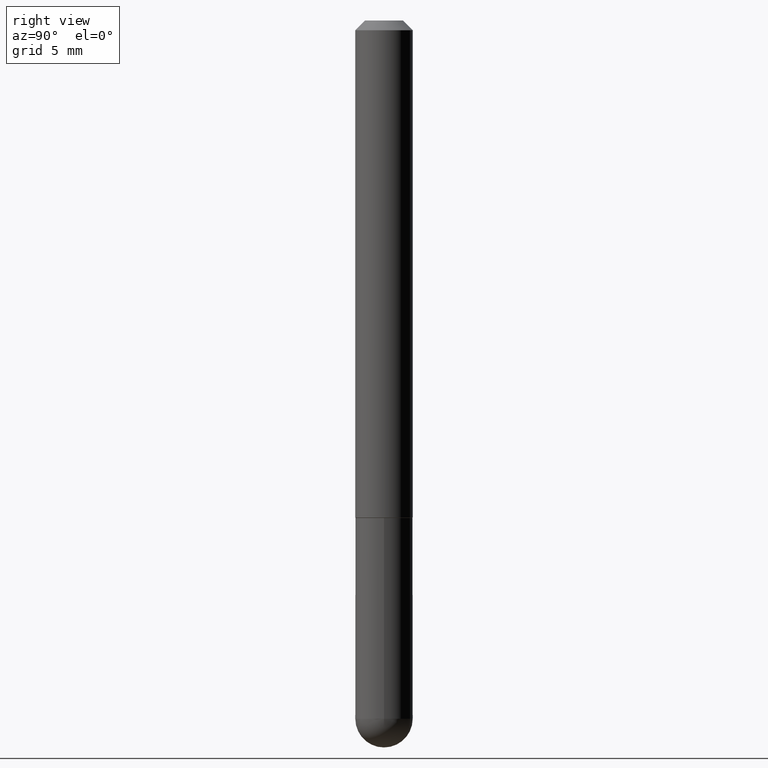
[diagram: clean part render]
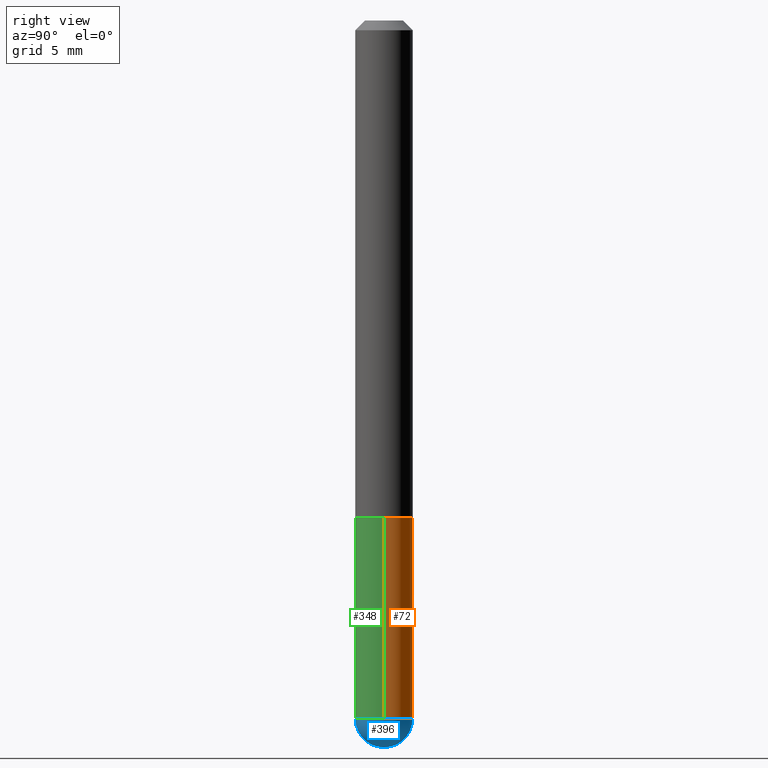
[diagram: same view with three faces highlighted in distinct colors, each labeled with its STEP entity id]
A machine part, right view with three faces highlighted in distinct colors.
Their STEP definitions:

[orange] entity #72 — the highlighted cylindrical surface (edge-blend (fillet) strip) has radius 1.4999 mm, axis along (-0, 0, 1).
#6 = CARTESIAN_POINT ( 'NONE',  ( 3.514260947928350449E-29, -5.017433257984542594E-15, -1.437049999999999939 ) ) ;
#8 = FACE_OUTER_BOUND ( 'NONE', #271, .T. ) ;
#18 = AXIS2_PLACEMENT_3D ( 'NONE', #6, #285, #359 ) ;
#34 = DIRECTION ( 'NONE',  ( 1.000000000000000000, -6.982962677686266711E-15, 4.876176775795935793E-29 ) ) ;
#52 = CIRCLE ( 'NONE', #336, 0.05905000000000001914 ) ;
#54 = CARTESIAN_POINT ( 'NONE',  ( -0.05905000000000001914, -3.876255866812795611E-15, -1.023699999999999832 ) ) ;
#57 = VERTEX_POINT ( 'NONE', #103 ) ;
#59 = VERTEX_POINT ( 'NONE', #321 ) ;
#72 = ADVANCED_FACE ( 'NONE', ( #8 ), #173, .T. ) ;
#75 = CARTESIAN_POINT ( 'NONE',  ( 0.000000000000000000, 0.000000000000000000, 0.000000000000000000 ) ) ;
#86 = EDGE_CURVE ( 'NONE', #59, #401, #368, .T. ) ;
#102 = CARTESIAN_POINT ( 'NONE',  ( 0.05905000000000001914, -4.123439461173741806E-16, 2.879382386107500921E-30 ) ) ;
#103 = CARTESIAN_POINT ( 'NONE',  ( 0.05905000000000001914, -3.986573392691101744E-15, -1.023699999999999832 ) ) ;
#105 = DIRECTION ( 'NONE',  ( -2.445468806185136877E-29, 3.491481338843145188E-15, 1.000000000000000000 ) ) ;
#126 = CARTESIAN_POINT ( 'NONE',  ( -0.05905000000000001914, 4.195754854663392958E-16, -2.904631170795522943E-30 ) ) ;
#138 = DIRECTION ( 'NONE',  ( -2.445468806185136597E-29, 3.491481338843145583E-15, 1.000000000000000000 ) ) ;
#149 = ORIENTED_EDGE ( 'NONE', *, *, #288, .F. ) ;
#173 = CYLINDRICAL_SURFACE ( 'NONE', #412, 0.05905000000000001914 ) ;
#176 = DIRECTION ( 'NONE',  ( 1.000000000000000000, -6.982962677686270655E-15, 0.000000000000000000 ) ) ;
#200 = DIRECTION ( 'NONE',  ( -2.445468806185136597E-29, 3.491481338843145583E-15, 1.000000000000000000 ) ) ;
#225 = CARTESIAN_POINT ( 'NONE',  ( 2.503426416891723784E-29, -3.574229446573727613E-15, -1.023699999999999832 ) ) ;
#235 = ORIENTED_EDGE ( 'NONE', *, *, #283, .T. ) ;
#238 = VERTEX_POINT ( 'NONE', #287 ) ;
#252 = DIRECTION ( 'NONE',  ( -2.445468806185136877E-29, 3.491481338843145188E-15, 1.000000000000000000 ) ) ;
#253 = VECTOR ( 'NONE', #252, 39.37007874015748143 ) ;
#255 = DIRECTION ( 'NONE',  ( 1.000000000000000000, -6.982962677686262766E-15, 0.000000000000000000 ) ) ;
#271 = EDGE_LOOP ( 'NONE', ( #301, #329, #277, #149, #235 ) ) ;
#272 = EDGE_CURVE ( 'NONE', #57, #401, #52, .T. ) ;
#277 = ORIENTED_EDGE ( 'NONE', *, *, #272, .F. ) ;
#280 = CIRCLE ( 'NONE', #18, 0.05905000000000001914 ) ;
#283 = EDGE_CURVE ( 'NONE', #335, #238, #280, .T. ) ;
#285 = DIRECTION ( 'NONE',  ( -2.445468806185136597E-29, 3.491481338843145583E-15, 1.000000000000000000 ) ) ;
#287 = CARTESIAN_POINT ( 'NONE',  ( 4.123439461174084467E-16, 0.05904999999999487742, -1.437050000000000161 ) ) ;
#288 = EDGE_CURVE ( 'NONE', #335, #57, #383, .T. ) ;
#301 = ORIENTED_EDGE ( 'NONE', *, *, #366, .T. ) ;
#313 = CIRCLE ( 'NONE', #323, 0.05905000000000001914 ) ;
#321 = CARTESIAN_POINT ( 'NONE',  ( -0.05905000000000001914, -3.876255866812795611E-15, -1.437049999999999939 ) ) ;
#323 = AXIS2_PLACEMENT_3D ( 'NONE', #369, #334, #176 ) ;
#329 = ORIENTED_EDGE ( 'NONE', *, *, #86, .T. ) ;
#334 = DIRECTION ( 'NONE',  ( -2.445468806185136597E-29, 3.491481338843145583E-15, 1.000000000000000000 ) ) ;
#335 = VERTEX_POINT ( 'NONE', #382 ) ;
#336 = AXIS2_PLACEMENT_3D ( 'NONE', #225, #200, #255 ) ;
#359 = DIRECTION ( 'NONE',  ( 1.000000000000000000, -6.982962677686270655E-15, 0.000000000000000000 ) ) ;
#366 = EDGE_CURVE ( 'NONE', #238, #59, #313, .T. ) ;
#368 = LINE ( 'NONE', #126, #253 ) ;
#369 = CARTESIAN_POINT ( 'NONE',  ( 3.514260947928350449E-29, -5.017433257984542594E-15, -1.437049999999999939 ) ) ;
#382 = CARTESIAN_POINT ( 'NONE',  ( 0.05905000000000001914, -4.708175298396508446E-15, -1.437049999999999939 ) ) ;
#383 = LINE ( 'NONE', #102, #384 ) ;
#384 = VECTOR ( 'NONE', #105, 39.37007874015748143 ) ;
#401 = VERTEX_POINT ( 'NONE', #54 ) ;
#412 = AXIS2_PLACEMENT_3D ( 'NONE', #75, #138, #34 ) ;

[blue] entity #396 — the highlighted spherical surface has radius 1.4999 mm.
#2 = CIRCLE ( 'NONE', #101, 0.05905000000000025506 ) ;
#6 = CARTESIAN_POINT ( 'NONE',  ( 3.514260947928350449E-29, -5.017433257984542594E-15, -1.437049999999999939 ) ) ;
#15 = DIRECTION ( 'NONE',  ( 6.982962677686266711E-15, 1.000000000000000000, 0.000000000000000000 ) ) ;
#18 = AXIS2_PLACEMENT_3D ( 'NONE', #6, #285, #359 ) ;
#24 = ORIENTED_EDGE ( 'NONE', *, *, #283, .F. ) ;
#46 = DIRECTION ( 'NONE',  ( -1.000000000000000000, 6.982962677686265922E-15, -4.883557194083112340E-29 ) ) ;
#69 = DIRECTION ( 'NONE',  ( -1.000000000000000000, 7.105427357601001070E-15, -4.926315508542082329E-29 ) ) ;
#80 = DIRECTION ( 'NONE',  ( 1.000000000000000000, -6.982962677686265922E-15, 4.883557194083112340E-29 ) ) ;
#87 = CARTESIAN_POINT ( 'NONE',  ( -4.195754854663065087E-16, -0.05905000000000539678, -1.437049999999999716 ) ) ;
#98 = DIRECTION ( 'NONE',  ( 1.000000000000000000, -6.982962677686270655E-15, 0.000000000000000000 ) ) ;
#101 = AXIS2_PLACEMENT_3D ( 'NONE', #151, #80, #15 ) ;
#104 = CARTESIAN_POINT ( 'NONE',  ( 3.183141170014464762E-29, -5.491615626124592102E-15, -1.437049999999999939 ) ) ;
#128 = CIRCLE ( 'NONE', #319, 0.05905000000000001914 ) ;
#131 = AXIS2_PLACEMENT_3D ( 'NONE', #240, #46, #262 ) ;
#135 = DIRECTION ( 'NONE',  ( -7.105427357601001070E-15, -1.000000000000000000, 0.000000000000000000 ) ) ;
#145 = EDGE_CURVE ( 'NONE', #378, #335, #128, .T. ) ;
#151 = CARTESIAN_POINT ( 'NONE',  ( 3.183141170014464762E-29, -5.491615626124592102E-15, -1.437049999999999939 ) ) ;
#180 = VERTEX_POINT ( 'NONE', #296 ) ;
#198 = CIRCLE ( 'NONE', #407, 0.05905000000000025506 ) ;
#209 = ORIENTED_EDGE ( 'NONE', *, *, #377, .T. ) ;
#210 = FACE_OUTER_BOUND ( 'NONE', #333, .T. ) ;
#222 = DIRECTION ( 'NONE',  ( -2.445468806185136597E-29, 3.491481338843145583E-15, 1.000000000000000000 ) ) ;
#232 = EDGE_CURVE ( 'NONE', #180, #378, #198, .T. ) ;
#238 = VERTEX_POINT ( 'NONE', #287 ) ;
#240 = CARTESIAN_POINT ( 'NONE',  ( 3.183141170014464762E-29, -5.491615626124592102E-15, -1.437049999999999939 ) ) ;
#262 = DIRECTION ( 'NONE',  ( 6.982962677686265922E-15, 1.000000000000000000, -4.626330217890349615E-15 ) ) ;
#268 = SPHERICAL_SURFACE ( 'NONE', #131, 0.05905000000000025506 ) ;
#280 = CIRCLE ( 'NONE', #18, 0.05905000000000001914 ) ;
#283 = EDGE_CURVE ( 'NONE', #335, #238, #280, .T. ) ;
#285 = DIRECTION ( 'NONE',  ( -2.445468806185136597E-29, 3.491481338843145583E-15, 1.000000000000000000 ) ) ;
#287 = CARTESIAN_POINT ( 'NONE',  ( 4.123439461174084467E-16, 0.05904999999999487742, -1.437050000000000161 ) ) ;
#296 = CARTESIAN_POINT ( 'NONE',  ( 3.330070981488499955E-29, -5.694171829508798064E-15, -1.496100000000000207 ) ) ;
#309 = ORIENTED_EDGE ( 'NONE', *, *, #145, .F. ) ;
#319 = AXIS2_PLACEMENT_3D ( 'NONE', #381, #222, #98 ) ;
#333 = EDGE_LOOP ( 'NONE', ( #346, #209, #24, #309 ) ) ;
#335 = VERTEX_POINT ( 'NONE', #382 ) ;
#346 = ORIENTED_EDGE ( 'NONE', *, *, #232, .F. ) ;
#359 = DIRECTION ( 'NONE',  ( 1.000000000000000000, -6.982962677686270655E-15, 0.000000000000000000 ) ) ;
#377 = EDGE_CURVE ( 'NONE', #180, #238, #2, .T. ) ;
#378 = VERTEX_POINT ( 'NONE', #87 ) ;
#381 = CARTESIAN_POINT ( 'NONE',  ( 3.514260947928350449E-29, -5.017433257984542594E-15, -1.437049999999999939 ) ) ;
#382 = CARTESIAN_POINT ( 'NONE',  ( 0.05905000000000001914, -4.708175298396508446E-15, -1.437049999999999939 ) ) ;
#396 = ADVANCED_FACE ( 'NONE', ( #210 ), #268, .T. ) ;
#407 = AXIS2_PLACEMENT_3D ( 'NONE', #104, #69, #135 ) ;

[green] entity #348 — the highlighted cylindrical surface (edge-blend (fillet) strip) has radius 1.4999 mm, axis along (-0, 0, 1).
#7 = ORIENTED_EDGE ( 'NONE', *, *, #145, .T. ) ;
#12 = AXIS2_PLACEMENT_3D ( 'NONE', #68, #257, #74 ) ;
#44 = AXIS2_PLACEMENT_3D ( 'NONE', #357, #293, #73 ) ;
#54 = CARTESIAN_POINT ( 'NONE',  ( -0.05905000000000001914, -3.876255866812795611E-15, -1.023699999999999832 ) ) ;
#55 = EDGE_LOOP ( 'NONE', ( #337, #113, #7, #169, #152 ) ) ;
#57 = VERTEX_POINT ( 'NONE', #103 ) ;
#59 = VERTEX_POINT ( 'NONE', #321 ) ;
#66 = CIRCLE ( 'NONE', #367, 0.05905000000000001914 ) ;
#68 = CARTESIAN_POINT ( 'NONE',  ( 0.000000000000000000, 0.000000000000000000, 0.000000000000000000 ) ) ;
#71 = EDGE_CURVE ( 'NONE', #59, #378, #351, .T. ) ;
#73 = DIRECTION ( 'NONE',  ( 1.000000000000000000, -6.982962677686270655E-15, 0.000000000000000000 ) ) ;
#74 = DIRECTION ( 'NONE',  ( 1.000000000000000000, -6.982962677686266711E-15, 4.876176775795935793E-29 ) ) ;
#86 = EDGE_CURVE ( 'NONE', #59, #401, #368, .T. ) ;
#87 = CARTESIAN_POINT ( 'NONE',  ( -4.195754854663065087E-16, -0.05905000000000539678, -1.437049999999999716 ) ) ;
#98 = DIRECTION ( 'NONE',  ( 1.000000000000000000, -6.982962677686270655E-15, 0.000000000000000000 ) ) ;
#102 = CARTESIAN_POINT ( 'NONE',  ( 0.05905000000000001914, -4.123439461173741806E-16, 2.879382386107500921E-30 ) ) ;
#103 = CARTESIAN_POINT ( 'NONE',  ( 0.05905000000000001914, -3.986573392691101744E-15, -1.023699999999999832 ) ) ;
#105 = DIRECTION ( 'NONE',  ( -2.445468806185136877E-29, 3.491481338843145188E-15, 1.000000000000000000 ) ) ;
#111 = DIRECTION ( 'NONE',  ( 1.000000000000000000, -6.982962677686262766E-15, 0.000000000000000000 ) ) ;
#113 = ORIENTED_EDGE ( 'NONE', *, *, #71, .T. ) ;
#126 = CARTESIAN_POINT ( 'NONE',  ( -0.05905000000000001914, 4.195754854663392958E-16, -2.904631170795522943E-30 ) ) ;
#128 = CIRCLE ( 'NONE', #319, 0.05905000000000001914 ) ;
#134 = CYLINDRICAL_SURFACE ( 'NONE', #12, 0.05905000000000001914 ) ;
#145 = EDGE_CURVE ( 'NONE', #378, #335, #128, .T. ) ;
#152 = ORIENTED_EDGE ( 'NONE', *, *, #405, .F. ) ;
#169 = ORIENTED_EDGE ( 'NONE', *, *, #288, .T. ) ;
#175 = DIRECTION ( 'NONE',  ( -2.445468806185136597E-29, 3.491481338843145583E-15, 1.000000000000000000 ) ) ;
#222 = DIRECTION ( 'NONE',  ( -2.445468806185136597E-29, 3.491481338843145583E-15, 1.000000000000000000 ) ) ;
#252 = DIRECTION ( 'NONE',  ( -2.445468806185136877E-29, 3.491481338843145188E-15, 1.000000000000000000 ) ) ;
#253 = VECTOR ( 'NONE', #252, 39.37007874015748143 ) ;
#257 = DIRECTION ( 'NONE',  ( -2.445468806185136597E-29, 3.491481338843145583E-15, 1.000000000000000000 ) ) ;
#274 = CARTESIAN_POINT ( 'NONE',  ( 2.503426416891723784E-29, -3.574229446573727613E-15, -1.023699999999999832 ) ) ;
#288 = EDGE_CURVE ( 'NONE', #335, #57, #383, .T. ) ;
#291 = FACE_OUTER_BOUND ( 'NONE', #55, .T. ) ;
#293 = DIRECTION ( 'NONE',  ( -2.445468806185136597E-29, 3.491481338843145583E-15, 1.000000000000000000 ) ) ;
#319 = AXIS2_PLACEMENT_3D ( 'NONE', #381, #222, #98 ) ;
#321 = CARTESIAN_POINT ( 'NONE',  ( -0.05905000000000001914, -3.876255866812795611E-15, -1.437049999999999939 ) ) ;
#335 = VERTEX_POINT ( 'NONE', #382 ) ;
#337 = ORIENTED_EDGE ( 'NONE', *, *, #86, .F. ) ;
#348 = ADVANCED_FACE ( 'NONE', ( #291 ), #134, .T. ) ;
#351 = CIRCLE ( 'NONE', #44, 0.05905000000000001914 ) ;
#357 = CARTESIAN_POINT ( 'NONE',  ( 3.514260947928350449E-29, -5.017433257984542594E-15, -1.437049999999999939 ) ) ;
#367 = AXIS2_PLACEMENT_3D ( 'NONE', #274, #175, #111 ) ;
#368 = LINE ( 'NONE', #126, #253 ) ;
#378 = VERTEX_POINT ( 'NONE', #87 ) ;
#381 = CARTESIAN_POINT ( 'NONE',  ( 3.514260947928350449E-29, -5.017433257984542594E-15, -1.437049999999999939 ) ) ;
#382 = CARTESIAN_POINT ( 'NONE',  ( 0.05905000000000001914, -4.708175298396508446E-15, -1.437049999999999939 ) ) ;
#383 = LINE ( 'NONE', #102, #384 ) ;
#384 = VECTOR ( 'NONE', #105, 39.37007874015748143 ) ;
#401 = VERTEX_POINT ( 'NONE', #54 ) ;
#405 = EDGE_CURVE ( 'NONE', #401, #57, #66, .T. ) ;